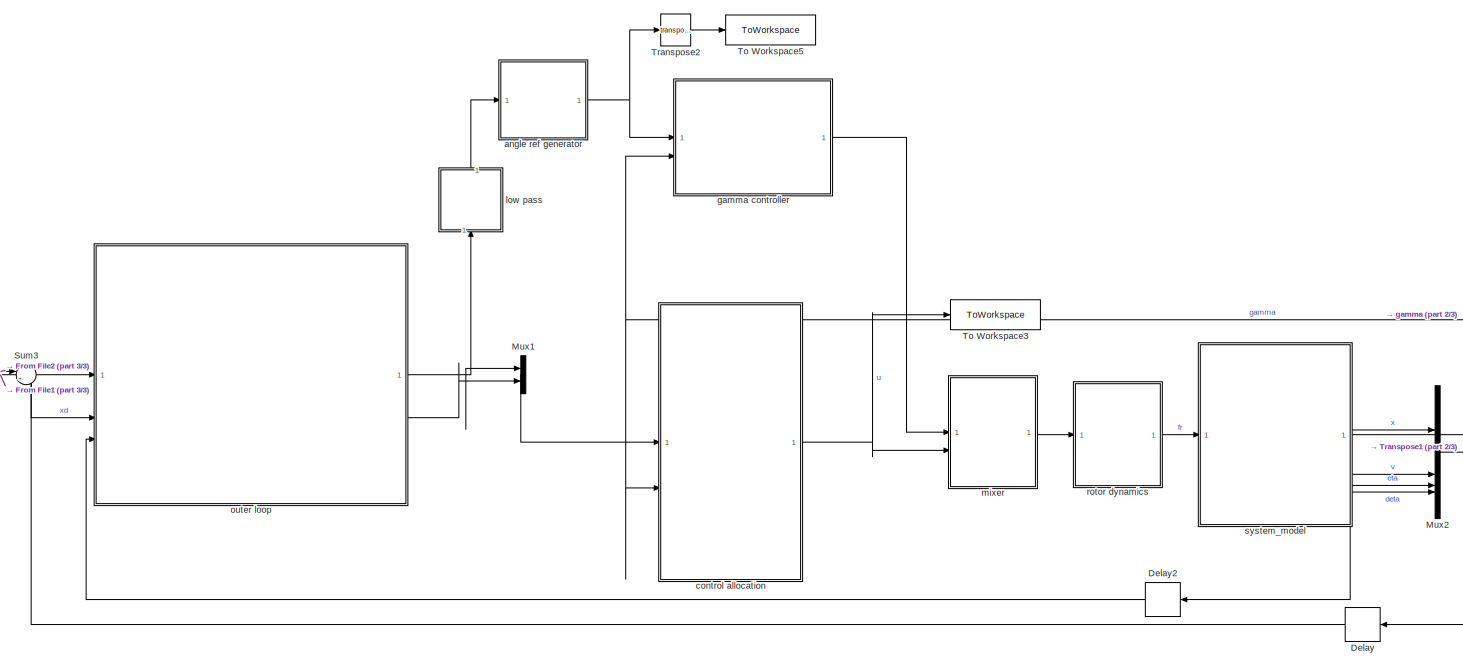
[diagram: root canvas - part 1/3, most of the canvas]
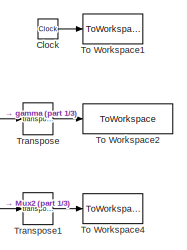
[diagram: root canvas - part 2/3, middle right region]
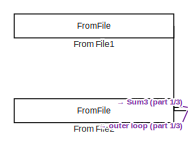
[diagram: root canvas - part 3/3, middle left region]
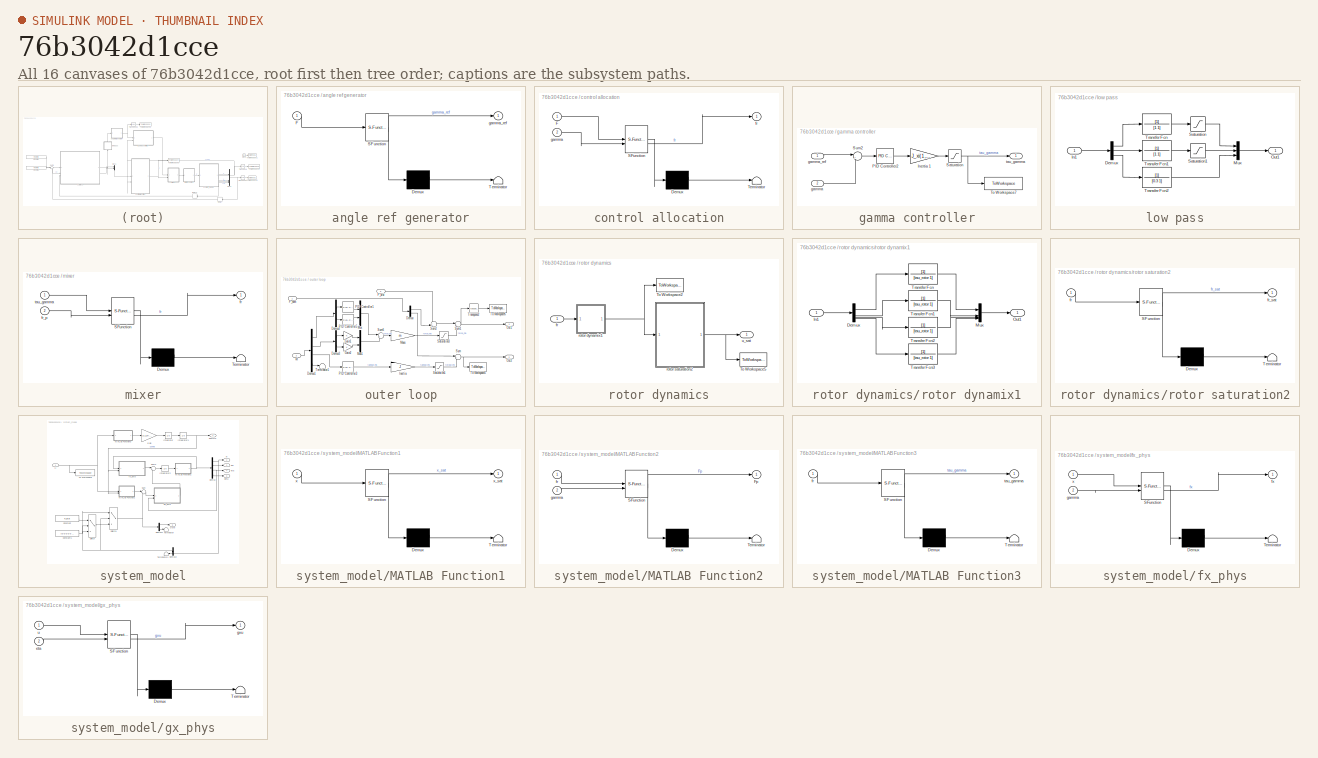
[diagram: thumbnail index - all 16 canvases of the model, root first then tree order]
MODEL slx_76b3042d1cce
KIND model
CONFIG AbsTol = auto
CONFIG EnableMultiTasking = off
CONFIG FixedStep = 0.01
CONFIG MaxStep = auto
CONFIG MinStep = auto
CONFIG RelTol = 1e-3
CONFIG SampleTimeConstraint = Unconstrained
CONFIG SolverName = FixedStepAuto
CONFIG StartTime = 0.0
CONFIG StopTime = end_time
BLOCK [Clock] Clock
BLOCK [Delay] Delay
  DelayLength = 1
  InitialCondition = x0
  InputPortMap = u0
BLOCK [Delay] Delay2
  DelayLength = 1
  InitialCondition = zeros(3,1)
  InputPortMap = u0
BLOCK [FromFile] From File1
  ExtrapolationAfterLastDataPoint = Hold last value
  FileName = data/Fp_nom.mat
  SampleTime = 0
BLOCK [FromFile] From File2
  ExtrapolationAfterLastDataPoint = Hold last value
  FileName = data/x_nom.mat
  SampleTime = 0
BLOCK [Mux] Mux1
  DisplayOption = bar
  Inputs = 2
BLOCK [Mux] Mux2
  DisplayOption = bar
BLOCK [Sum] Sum3
  Inputs = |+-
BLOCK [ToWorkspace] To Workspace1
  FixptAsFi = on
  MaxDataPoints = inf
  SampleTime = -1
  VariableName = time
BLOCK [ToWorkspace] To Workspace2
  FixptAsFi = on
  MaxDataPoints = inf
  SampleTime = -1
  Save2DSignal = 2-D array (concatenate along first dimension)
  VariableName = gamma_
BLOCK [ToWorkspace] To Workspace3
  FixptAsFi = on
  MaxDataPoints = inf
  SampleTime = -1
  VariableName = u
BLOCK [ToWorkspace] To Workspace4
  FixptAsFi = on
  MaxDataPoints = inf
  SampleTime = -1
  Save2DSignal = 2-D array (concatenate along first dimension)
  VariableName = x
BLOCK [ToWorkspace] To Workspace5
  FixptAsFi = on
  MaxDataPoints = inf
  SampleTime = -1
  Save2DSignal = 2-D array (concatenate along first dimension)
  VariableName = gamma_ref
BLOCK [Math] Transpose
  Operator = transpose
BLOCK [Math] Transpose1
  Operator = transpose
BLOCK [Math] Transpose2
  Operator = transpose
BLOCK [SubSystem] angle ref generator
  ErrorFcn = Stateflow.Translate.translate
  PermitHierarchicalResolution = ExplicitOnly
  SFBlockType = MATLAB Function
  TreatAsAtomicUnit = on
BLOCK [Demux] angle ref generator/ Demux 
  Outputs = 1
BLOCK [S-Function] angle ref generator/ SFunction 
  EnableBusSupport = on
  FunctionName = sf_sfun
  Parameters = AX_all,AY_all,opt_angle_table_mat
  PortCounts = [1 2]
  SFcnIsStateOwnerBlock = off
  SFunctionDeploymentMode = off
  Tag = Stateflow S-Function 3
BLOCK [Terminator] angle ref generator/ Terminator 
BLOCK [Inport] angle ref generator/F
BLOCK [Outport] angle ref generator/gamma_ref
BLOCK [SubSystem] control allocation
  ErrorFcn = Stateflow.Translate.translate
  PermitHierarchicalResolution = ExplicitOnly
  SFBlockType = MATLAB Function
  TreatAsAtomicUnit = on
BLOCK [Demux] control allocation/ Demux 
  Outputs = 1
BLOCK [S-Function] control allocation/ SFunction 
  EnableBusSupport = on
  FunctionName = sf_sfun
  Parameters = M_gamma,f_max
  PortCounts = [2 2]
  SFcnIsStateOwnerBlock = off
  SFunctionDeploymentMode = off
  Tag = Stateflow S-Function 4
BLOCK [Terminator] control allocation/ Terminator 
BLOCK [Inport] control allocation/F
BLOCK [Outport] control allocation/fr
  VectorParamsAs1DForOutWhenUnconnected = off
BLOCK [Inport] control allocation/gamma
  Port = 2
BLOCK [SubSystem] gamma controller
BLOCK [Gain] gamma controller/Inertia 1
  Gain = J_xi(1,1)
BLOCK [Reference] gamma controller/PID Controller2  REF=slpidlib/PID Controller
  SourceBlock = slpidlib/PID Controller
  SourceType = PID 1dof
BLOCK [Saturate] gamma controller/Saturation
  LowerLimit = -0.03
  UpperLimit = 0.03
BLOCK [Sum] gamma controller/Sum2
  Inputs = |+-
BLOCK [ToWorkspace] gamma controller/To Workspace7
  FixptAsFi = on
  MaxDataPoints = inf
  SampleTime = -1
  SaveFormat = Timeseries
  VariableName = tau_gamma
BLOCK [Inport] gamma controller/gamma
  Port = 2
BLOCK [Inport] gamma controller/gamma_ref
BLOCK [Outport] gamma controller/tau_gamma
BLOCK [SubSystem] low pass
  NameLocation = right
BLOCK [Demux] low pass/Demux
  Outputs = 3
BLOCK [Inport] low pass/In1
BLOCK [Mux] low pass/Mux
  DisplayOption = bar
  Inputs = 3
BLOCK [Outport] low pass/Out1
BLOCK [Saturate] low pass/Saturation
  LowerLimit = -1
  UpperLimit = 1
BLOCK [Saturate] low pass/Saturation1
  LowerLimit = -1
  UpperLimit = 1
BLOCK [TransferFcn] low pass/Transfer Fcn
  Denominator = [1 1]
BLOCK [TransferFcn] low pass/Transfer Fcn1
  Denominator = [1 1]
BLOCK [TransferFcn] low pass/Transfer Fcn2
  Denominator = [0.3 1]
BLOCK [SubSystem] mixer
  ErrorFcn = Stateflow.Translate.translate
  PermitHierarchicalResolution = ExplicitOnly
  SFBlockType = MATLAB Function
  TreatAsAtomicUnit = on
BLOCK [Demux] mixer/ Demux 
  Outputs = 1
BLOCK [S-Function] mixer/ SFunction 
  EnableBusSupport = on
  FunctionName = sf_sfun
  Parameters = M_gamma
  PortCounts = [2 2]
  SFcnIsStateOwnerBlock = off
  SFunctionDeploymentMode = off
  Tag = Stateflow S-Function 15
BLOCK [Terminator] mixer/ Terminator 
BLOCK [Outport] mixer/fr
BLOCK [Inport] mixer/fr_p
  Port = 2
BLOCK [Inport] mixer/tau_gamma
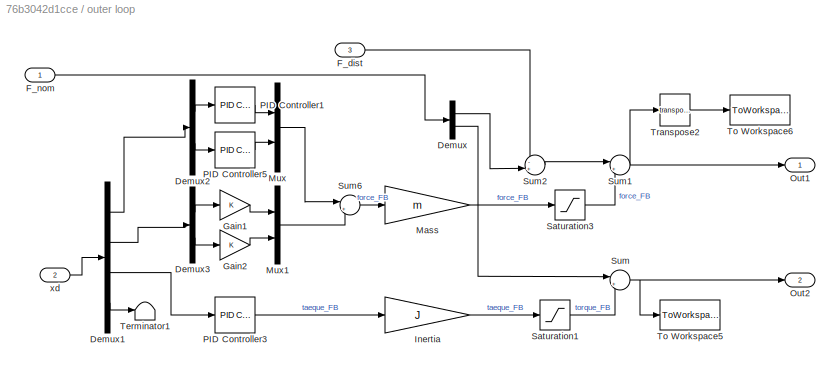
BLOCK [SubSystem] outer loop
BLOCK [Demux] outer loop/Demux
  Outputs = 2
BLOCK [Demux] outer loop/Demux1
  Outputs = [3 3 3 3]
BLOCK [Demux] outer loop/Demux2
  Outputs = [2 1]
BLOCK [Demux] outer loop/Demux3
  Outputs = [2 1]
BLOCK [Inport] outer loop/F_dist
  Port = 3
BLOCK [Inport] outer loop/F_nom
BLOCK [Gain] outer loop/Gain1
BLOCK [Gain] outer loop/Gain2
BLOCK [Gain] outer loop/Inertia 
  Gain = J
  Multiplication = Matrix(K*u) (u vector)
BLOCK [Gain] outer loop/Mass
  Gain = m
BLOCK [Mux] outer loop/Mux
  DisplayOption = bar
  Inputs = 2
BLOCK [Mux] outer loop/Mux1
  DisplayOption = bar
  Inputs = 2
BLOCK [Outport] outer loop/Out1
BLOCK [Outport] outer loop/Out2
  Port = 2
BLOCK [Reference] outer loop/PID Controller1  REF=slpidlib/PID Controller
  SourceBlock = slpidlib/PID Controller
  SourceType = PID 1dof
BLOCK [Reference] outer loop/PID Controller3  REF=slpidlib/PID Controller
  SourceBlock = slpidlib/PID Controller
  SourceType = PID 1dof
BLOCK [Reference] outer loop/PID Controller5  REF=slpidlib/PID Controller
  SourceBlock = slpidlib/PID Controller
  SourceType = PID 1dof
BLOCK [Saturate] outer loop/Saturation1
  LowerLimit = -0.1
  UpperLimit = 0.1
BLOCK [Saturate] outer loop/Saturation3
  LowerLimit = -1
  UpperLimit = 1
BLOCK [Sum] outer loop/Sum
  Inputs = |++
BLOCK [Sum] outer loop/Sum1
  Inputs = |++
BLOCK [Sum] outer loop/Sum2
  Inputs = -+|
BLOCK [Sum] outer loop/Sum6
  Inputs = |++
BLOCK [Terminator] outer loop/Terminator1
BLOCK [ToWorkspace] outer loop/To Workspace5
  FixptAsFi = on
  MaxDataPoints = inf
  SampleTime = -1
  VariableName = moment_ref
BLOCK [ToWorkspace] outer loop/To Workspace6
  FixptAsFi = on
  MaxDataPoints = inf
  SampleTime = -1
  Save2DSignal = 2-D array (concatenate along first dimension)
  VariableName = thrust_ref
BLOCK [Math] outer loop/Transpose2
  Operator = transpose
BLOCK [Inport] outer loop/xd
  Port = 2
BLOCK [SubSystem] rotor dynamics
BLOCK [ToWorkspace] rotor dynamics/To Workspace2
  FixptAsFi = on
  MaxDataPoints = inf
  SampleTime = -1
  VariableName = rotor_input
BLOCK [ToWorkspace] rotor dynamics/To Workspace5
  FixptAsFi = on
  MaxDataPoints = inf
  SampleTime = -1
  VariableName = rotor_sat_input
BLOCK [Inport] rotor dynamics/fr
BLOCK [SubSystem] rotor dynamics/rotor dynamix1
  Commented = through
BLOCK [Demux] rotor dynamics/rotor dynamix1/Demux
BLOCK [Inport] rotor dynamics/rotor dynamix1/In1
BLOCK [Mux] rotor dynamics/rotor dynamix1/Mux
  DisplayOption = bar
BLOCK [Outport] rotor dynamics/rotor dynamix1/Out1
BLOCK [TransferFcn] rotor dynamics/rotor dynamix1/Transfer Fcn
  Denominator = [tau_rotor 1]
BLOCK [TransferFcn] rotor dynamics/rotor dynamix1/Transfer Fcn1
  Denominator = [tau_rotor 1]
BLOCK [TransferFcn] rotor dynamics/rotor dynamix1/Transfer Fcn2
  Denominator = [tau_rotor 1]
BLOCK [TransferFcn] rotor dynamics/rotor dynamix1/Transfer Fcn3
  Denominator = [tau_rotor 1]
BLOCK [SubSystem] rotor dynamics/rotor saturation2
  ErrorFcn = Stateflow.Translate.translate
  PermitHierarchicalResolution = ExplicitOnly
  SFBlockType = MATLAB Function
  TreatAsAtomicUnit = on
BLOCK [Demux] rotor dynamics/rotor saturation2/ Demux 
  Outputs = 1
BLOCK [S-Function] rotor dynamics/rotor saturation2/ SFunction 
  EnableBusSupport = on
  FunctionName = sf_sfun
  Parameters = f_max
  PortCounts = [1 2]
  SFcnIsStateOwnerBlock = off
  SFunctionDeploymentMode = off
  Tag = Stateflow S-Function 13
BLOCK [Terminator] rotor dynamics/rotor saturation2/ Terminator 
BLOCK [Inport] rotor dynamics/rotor saturation2/fr
BLOCK [Outport] rotor dynamics/rotor saturation2/fr_sat
  VectorParamsAs1DForOutWhenUnconnected = off
BLOCK [Outport] rotor dynamics/u_sat
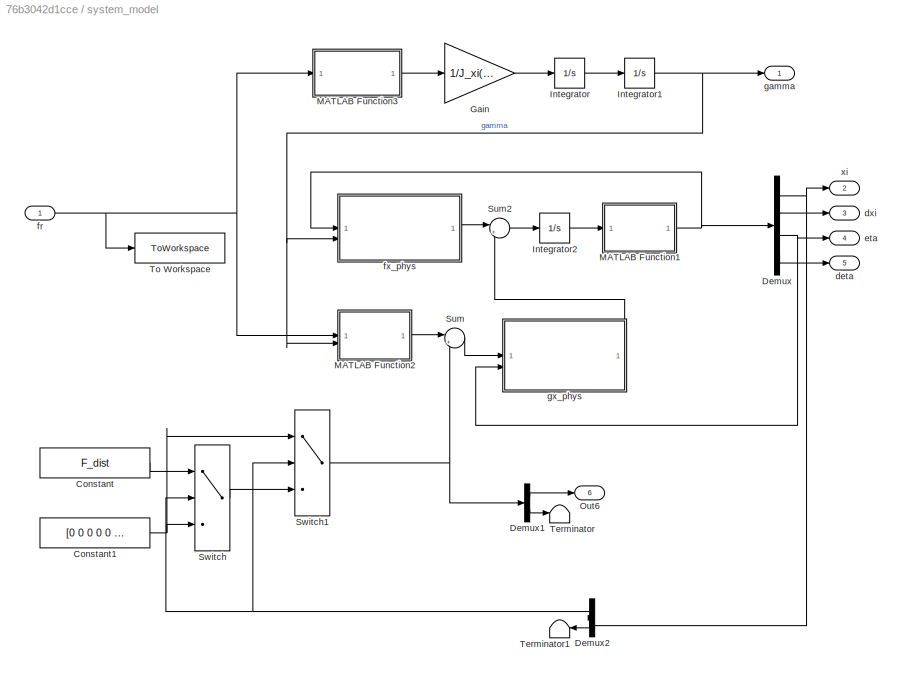
BLOCK [SubSystem] system_model
  PortSchema = {"entries":[{"content":{"sides":[{"content":{"connectorIds":["In1"]},"type":"ConnectorPlacement.EquallySpacedRectSide","uuid":"254c1886-4b3f-4fd7-a815-da90215f9171"},{"content":{"connectorIds":["Out1","Out2","Out3","Out4","Out5"],"side":"RIGHT"},"type":"ConnectorPlacement.EquallySpacedRectSide","uuid":"0b427131-5008-4b05-bf64-69ca1b176e39"},{"content":{"side":"TOP"},"type":"ConnectorPlacement.Equa...<+400ch>
BLOCK [Constant] system_model/Constant
  Value = F_dist
BLOCK [Constant] system_model/Constant1
  Value = [0 0 0 0 0 0]
BLOCK [Demux] system_model/Demux
  Outputs = [3 3 3 3]
BLOCK [Demux] system_model/Demux1
  Outputs = [3 3]
BLOCK [Demux] system_model/Demux2
  Outputs = [1 2]
BLOCK [Gain] system_model/Gain
  Gain = 1/J_xi(1,1)
BLOCK [Integrator] system_model/Integrator
  InitialCondition = zeros(4,1)
BLOCK [Integrator] system_model/Integrator1
  InitialCondition = gamma0
BLOCK [Integrator] system_model/Integrator2
  InitialCondition = x0
BLOCK [SubSystem] system_model/MATLAB Function1
  ErrorFcn = Stateflow.Translate.translate
  PermitHierarchicalResolution = ExplicitOnly
  SFBlockType = MATLAB Function
  TreatAsAtomicUnit = on
BLOCK [Demux] system_model/MATLAB Function1/ Demux 
  Outputs = 1
BLOCK [S-Function] system_model/MATLAB Function1/ SFunction 
  EnableBusSupport = on
  FunctionName = sf_sfun
  PortCounts = [1 2]
  SFcnIsStateOwnerBlock = off
  SFunctionDeploymentMode = off
  Tag = Stateflow S-Function 11
BLOCK [Terminator] system_model/MATLAB Function1/ Terminator 
BLOCK [Inport] system_model/MATLAB Function1/x
BLOCK [Outport] system_model/MATLAB Function1/x_sat
BLOCK [SubSystem] system_model/MATLAB Function2
  ErrorFcn = Stateflow.Translate.translate
  PermitHierarchicalResolution = ExplicitOnly
  SFBlockType = MATLAB Function
  TreatAsAtomicUnit = on
BLOCK [Demux] system_model/MATLAB Function2/ Demux 
  Outputs = 1
BLOCK [S-Function] system_model/MATLAB Function2/ SFunction 
  EnableBusSupport = on
  FunctionName = sf_sfun
  PortCounts = [2 2]
  SFcnIsStateOwnerBlock = off
  SFunctionDeploymentMode = off
  Tag = Stateflow S-Function 2
BLOCK [Terminator] system_model/MATLAB Function2/ Terminator 
BLOCK [Outport] system_model/MATLAB Function2/Fp
BLOCK [Inport] system_model/MATLAB Function2/fr
BLOCK [Inport] system_model/MATLAB Function2/gamma
  Port = 2
BLOCK [SubSystem] system_model/MATLAB Function3
  ErrorFcn = Stateflow.Translate.translate
  PermitHierarchicalResolution = ExplicitOnly
  SFBlockType = MATLAB Function
  TreatAsAtomicUnit = on
BLOCK [Demux] system_model/MATLAB Function3/ Demux 
  Outputs = 1
BLOCK [S-Function] system_model/MATLAB Function3/ SFunction 
  EnableBusSupport = on
  FunctionName = sf_sfun
  Parameters = M_gamma
  PortCounts = [1 2]
  SFcnIsStateOwnerBlock = off
  SFunctionDeploymentMode = off
  Tag = Stateflow S-Function 7
BLOCK [Terminator] system_model/MATLAB Function3/ Terminator 
BLOCK [Inport] system_model/MATLAB Function3/fr
BLOCK [Outport] system_model/MATLAB Function3/tau_gamma
BLOCK [Outport] system_model/Out6
  Port = 6
BLOCK [Sum] system_model/Sum
  Inputs = |++
BLOCK [Sum] system_model/Sum2
  Inputs = |++
BLOCK [Switch] system_model/Switch
  Criteria = u2 > Threshold
  InputSameDT = off
  SaturateOnIntegerOverflow = off
  Threshold = 1
BLOCK [Switch] system_model/Switch1
  Criteria = u2 > Threshold
  InputSameDT = off
  SaturateOnIntegerOverflow = off
  Threshold = 4
BLOCK [Terminator] system_model/Terminator
BLOCK [Terminator] system_model/Terminator1
BLOCK [ToWorkspace] system_model/To Workspace
  FixptAsFi = on
  MaxDataPoints = inf
  SampleTime = -1
  VariableName = fr
BLOCK [Outport] system_model/deta
  Port = 5
  VectorParamsAs1DForOutWhenUnconnected = off
BLOCK [Outport] system_model/dxi
  Port = 3
  VectorParamsAs1DForOutWhenUnconnected = off
BLOCK [Outport] system_model/eta
  Port = 4
  VectorParamsAs1DForOutWhenUnconnected = off
BLOCK [Inport] system_model/fr
BLOCK [SubSystem] system_model/fx_phys
  ErrorFcn = Stateflow.Translate.translate
  PermitHierarchicalResolution = ExplicitOnly
  SFBlockType = MATLAB Function
  TreatAsAtomicUnit = on
BLOCK [Demux] system_model/fx_phys/ Demux 
  Outputs = 1
BLOCK [S-Function] system_model/fx_phys/ SFunction 
  EnableBusSupport = on
  FunctionName = sf_sfun
  PortCounts = [2 2]
  SFcnIsStateOwnerBlock = off
  SFunctionDeploymentMode = off
  Tag = Stateflow S-Function 1
BLOCK [Terminator] system_model/fx_phys/ Terminator 
BLOCK [Outport] system_model/fx_phys/fx
  VectorParamsAs1DForOutWhenUnconnected = off
BLOCK [Inport] system_model/fx_phys/gamma
  Port = 2
BLOCK [Inport] system_model/fx_phys/x
BLOCK [Outport] system_model/gamma
  VectorParamsAs1DForOutWhenUnconnected = off
BLOCK [SubSystem] system_model/gx_phys
  ErrorFcn = Stateflow.Translate.translate
  PermitHierarchicalResolution = ExplicitOnly
  SFBlockType = MATLAB Function
  TreatAsAtomicUnit = on
BLOCK [Demux] system_model/gx_phys/ Demux 
  Outputs = 1
BLOCK [S-Function] system_model/gx_phys/ SFunction 
  EnableBusSupport = on
  FunctionName = sf_sfun
  PortCounts = [2 2]
  SFcnIsStateOwnerBlock = off
  SFunctionDeploymentMode = off
  Tag = Stateflow S-Function 8
BLOCK [Terminator] system_model/gx_phys/ Terminator 
BLOCK [Inport] system_model/gx_phys/eta
  Port = 2
BLOCK [Outport] system_model/gx_phys/gxu
  VectorParamsAs1DForOutWhenUnconnected = off
BLOCK [Inport] system_model/gx_phys/u
BLOCK [Outport] system_model/xi
  Port = 2
  VectorParamsAs1DForOutWhenUnconnected = off
LINE Clock:1 -> To Workspace1:1
LINE Delay2:1 -> outer loop:3
LINE Delay:1 -> Sum3:2
LINE From File1:1 -> outer loop:1
LINE From File2:1 -> Sum3:1
LINE Mux1:1 -> control allocation:1
NET Mux2:1 -> Delay:1, Transpose1:1
LINE Sum3:1 -> outer loop:2
LINE Transpose1:1 -> To Workspace4:1
LINE Transpose2:1 -> To Workspace5:1
LINE Transpose:1 -> To Workspace2:1
NET angle ref generator:1 -> Transpose2:1, gamma controller:1
NET control allocation:1 -> To Workspace3:1, mixer:2
LINE gamma controller/Inertia 1:1 -> gamma controller/Saturation:1
LINE gamma controller/PID Controller2:1 -> gamma controller/Inertia 1:1
NET gamma controller/Saturation:1 -> gamma controller/To Workspace7:1, gamma controller/tau_gamma:1
LINE gamma controller/Sum2:1 -> gamma controller/PID Controller2:1
LINE gamma controller/gamma:1 -> gamma controller/Sum2:2
LINE gamma controller/gamma_ref:1 -> gamma controller/Sum2:1
LINE gamma controller:1 -> mixer:1
LINE low pass/Demux:1 -> low pass/Transfer Fcn:1
LINE low pass/Demux:2 -> low pass/Transfer Fcn1:1
LINE low pass/Demux:3 -> low pass/Transfer Fcn2:1
LINE low pass/In1:1 -> low pass/Demux:1
LINE low pass/Mux:1 -> low pass/Out1:1
LINE low pass/Saturation1:1 -> low pass/Mux:2
LINE low pass/Saturation:1 -> low pass/Mux:1
LINE low pass/Transfer Fcn1:1 -> low pass/Saturation1:1
LINE low pass/Transfer Fcn2:1 -> low pass/Mux:3
LINE low pass/Transfer Fcn:1 -> low pass/Saturation:1
LINE low pass:1 -> angle ref generator:1
LINE mixer:1 -> rotor dynamics:1
LINE outer loop/Demux1:1 -> outer loop/Demux2:1
LINE outer loop/Demux1:2 -> outer loop/Demux3:1
LINE outer loop/Demux1:3 -> outer loop/PID Controller3:1
LINE outer loop/Demux1:4 -> outer loop/Terminator1:1
LINE outer loop/Demux2:1 -> outer loop/PID Controller1:1
LINE outer loop/Demux2:2 -> outer loop/PID Controller5:1
LINE outer loop/Demux3:1 -> outer loop/Gain1:1
LINE outer loop/Demux3:2 -> outer loop/Gain2:1
LINE outer loop/Demux:1 -> outer loop/Sum2:2
LINE outer loop/Demux:2 -> outer loop/Sum:1
LINE outer loop/F_dist:1 -> outer loop/Sum2:1
LINE outer loop/F_nom:1 -> outer loop/Demux:1
LINE outer loop/Gain1:1 -> outer loop/Mux1:1
LINE outer loop/Gain2:1 -> outer loop/Mux1:2
LINE outer loop/Inertia :1 -> outer loop/Saturation1:1
LINE outer loop/Mass:1 -> outer loop/Saturation3:1
LINE outer loop/Mux1:1 -> outer loop/Sum6:2
LINE outer loop/Mux:1 -> outer loop/Sum6:1
LINE outer loop/PID Controller1:1 -> outer loop/Mux:1
LINE outer loop/PID Controller3:1 -> outer loop/Inertia :1
LINE outer loop/PID Controller5:1 -> outer loop/Mux:2
LINE outer loop/Saturation1:1 -> outer loop/Sum:2
LINE outer loop/Saturation3:1 -> outer loop/Sum1:2
NET outer loop/Sum1:1 -> outer loop/Out1:1, outer loop/Transpose2:1
LINE outer loop/Sum2:1 -> outer loop/Sum1:1
LINE outer loop/Sum6:1 -> outer loop/Mass:1
NET outer loop/Sum:1 -> outer loop/Out2:1, outer loop/To Workspace5:1
LINE outer loop/Transpose2:1 -> outer loop/To Workspace6:1
LINE outer loop/xd:1 -> outer loop/Demux1:1
NET outer loop:1 -> Mux1:1, low pass:1
LINE outer loop:2 -> Mux1:2
LINE rotor dynamics/fr:1 -> rotor dynamics/rotor dynamix1:1
LINE rotor dynamics/rotor dynamix1/Demux:1 -> rotor dynamics/rotor dynamix1/Transfer Fcn:1
LINE rotor dynamics/rotor dynamix1/Demux:2 -> rotor dynamics/rotor dynamix1/Transfer Fcn1:1
LINE rotor dynamics/rotor dynamix1/Demux:3 -> rotor dynamics/rotor dynamix1/Transfer Fcn2:1
LINE rotor dynamics/rotor dynamix1/Demux:4 -> rotor dynamics/rotor dynamix1/Transfer Fcn3:1
LINE rotor dynamics/rotor dynamix1/In1:1 -> rotor dynamics/rotor dynamix1/Demux:1
LINE rotor dynamics/rotor dynamix1/Mux:1 -> rotor dynamics/rotor dynamix1/Out1:1
LINE rotor dynamics/rotor dynamix1/Transfer Fcn1:1 -> rotor dynamics/rotor dynamix1/Mux:2
LINE rotor dynamics/rotor dynamix1/Transfer Fcn2:1 -> rotor dynamics/rotor dynamix1/Mux:3
LINE rotor dynamics/rotor dynamix1/Transfer Fcn3:1 -> rotor dynamics/rotor dynamix1/Mux:4
LINE rotor dynamics/rotor dynamix1/Transfer Fcn:1 -> rotor dynamics/rotor dynamix1/Mux:1
NET rotor dynamics/rotor dynamix1:1 -> rotor dynamics/To Workspace2:1, rotor dynamics/rotor saturation2:1
NET rotor dynamics/rotor saturation2:1 -> rotor dynamics/To Workspace5:1, rotor dynamics/u_sat:1
LINE rotor dynamics:1 -> system_model:1
NET system_model/Constant1:1 -> system_model/Switch1:1, system_model/Switch:3
LINE system_model/Constant:1 -> system_model/Switch:1
LINE system_model/Demux1:1 -> system_model/Out6:1
LINE system_model/Demux1:2 -> system_model/Terminator:1
NET system_model/Demux2:1 -> system_model/Switch1:2, system_model/Switch:2
LINE system_model/Demux2:2 -> system_model/Terminator1:1
NET system_model/Demux:1 -> system_model/Demux2:1, system_model/xi:1
LINE system_model/Demux:2 -> system_model/dxi:1
NET system_model/Demux:3 -> system_model/eta:1, system_model/gx_phys:2
LINE system_model/Demux:4 -> system_model/deta:1
LINE system_model/Gain:1 -> system_model/Integrator:1
NET system_model/Integrator1:1 -> system_model/MATLAB Function2:2, system_model/fx_phys:2, system_model/gamma:1
LINE system_model/Integrator2:1 -> system_model/MATLAB Function1:1
LINE system_model/Integrator:1 -> system_model/Integrator1:1
NET system_model/MATLAB Function1:1 -> system_model/Demux:1, system_model/fx_phys:1
LINE system_model/MATLAB Function2:1 -> system_model/Sum:1
LINE system_model/MATLAB Function3:1 -> system_model/Gain:1
LINE system_model/Sum2:1 -> system_model/Integrator2:1
LINE system_model/Sum:1 -> system_model/gx_phys:1
NET system_model/Switch1:1 -> system_model/Demux1:1, system_model/Sum:2
LINE system_model/Switch:1 -> system_model/Switch1:3
NET system_model/fr:1 -> system_model/MATLAB Function2:1, system_model/MATLAB Function3:1, system_model/To Workspace:1
LINE system_model/fx_phys:1 -> system_model/Sum2:1
LINE system_model/gx_phys:1 -> system_model/Sum2:2
NET system_model:1 -> Transpose:1, control allocation:2, gamma controller:2
LINE system_model:2 -> Mux2:1
LINE system_model:3 -> Mux2:2
LINE system_model:4 -> Mux2:3
LINE system_model:5 -> Mux2:4
LINE system_model:6 -> Delay2:1
note: NET lines group one-source signal fan-out (src -> all destinations, sorted); 1:1 wires keep LINE
CHART mixer states=1 transitions=1
  STATE_LABEL 'eML_blk_kernel()'
  STATE_LABEL "SCRIPT:\nfunction fr = mixer(tau_gamma,fr_p, M_gamma)\n    \n    fr_gamma = M_gamma \\ tau_gamma;\n\n    fr = fr_p' + fr_gamma;\n    "
CHART system_model/fx_phys states=1 transitions=1
  STATE_LABEL 'eML_blk_kernel()'
  STATE_LABEL 'SCRIPT:\nfunction fx=fx_phys(x,gamma)\n\n%this function generated in "variable_system.m"\nfx=fx_fun(x,gamma);'
CHART system_model/MATLAB Function2 states=1 transitions=1
  STATE_LABEL 'eML_blk_kernel()'
  STATE_LABEL "SCRIPT:\nfunction Fp = fcn(fr, gamma)\n\nFp = M_ftau_fun(gamma')*fr;"
CHART angle ref generator states=1 transitions=1
  STATE_LABEL 'eML_blk_kernel()'
  STATE_LABEL "SCRIPT:\nfunction gamma_ref = generate_gamma_ref(F, opt_angle_table_mat, AX_all, AY_all)\n\ngamma_ref = zeros(4,1);\nfor i=1:4\n    opt_angle_tmp = reshape(opt_angle_table_mat(i,:,:),size(AX_all));\n    gamma_ref(i) = interp2(AX_all, AY_all, opt_angle_tmp', F(1), F(2),'cubic');\nend\n"
CHART control allocation states=1 transitions=1
  STATE_LABEL 'eML_blk_kernel()'
  STATE_LABEL "SCRIPT:\nfunction fr= control_allocation(F, gamma, f_max, M_gamma)\n\ncoder.extrinsic('lsqminnorm');\ncoder.extrinsic('linprog');\n\nN = length(gamma);\n\n% f_mid = norm(F(1:3))/(4*N);\nf_mid = 0;\n\nf = [zeros(1,4*N), 1, -1];\nA = [eye(4*N), -ones(4*N,1), zeros(4*N,1);\n     -eye(4*N), zeros(4*N,1), ones(4*N,1);\n     zeros(1,4*N), 0, -1];\nb = [f_mid*ones(4*N,1); -f_mid*ones(4*N,1); 0];\n\nM_ftau = M_ftau_fun(ga...<+1002ch>"
CHART system_model/MATLAB Function3 states=1 transitions=1
  STATE_LABEL 'eML_blk_kernel()'
  STATE_LABEL 'SCRIPT:\nfunction tau_gamma = fcn(fr, M_gamma)\n\n    tau_gamma = M_gamma * fr;\n'
CHART system_model/gx_phys states=1 transitions=1
  STATE_LABEL 'eML_blk_kernel()'
  STATE_LABEL 'SCRIPT:\nfunction gxu=gx_phys(u,eta)\n%this function generated in "variable_system.m"\n\ngxu=gx_fun(eta)*u;'
CHART system_model/MATLAB Function1 states=1 transitions=1
  STATE_LABEL 'eML_blk_kernel()'
  STATE_LABEL 'SCRIPT:\nfunction x_sat = z_satulation(x)\n\n    x_sat = x;\n    if x(3) < 0.1\n        x_sat(3)=0.1;\n        % if x(6)<0\n        %     x_sat(6)=0;\n        % end\n    end\n    \nend\n'
CHART rotor dynamics/rotor saturation2 states=1 transitions=1
  STATE_LABEL 'eML_blk_kernel()'
  STATE_LABEL 'SCRIPT:\nfunction fr_sat = input_saturation(fr,f_max)\n\nfr_sat = zeros(size(fr));\n\nfr_sat = max(fr,zeros(size(fr)));\nfr_sat = min(fr_sat,f_max*ones(size(fr)));'
CHART  states=0 transitions=0
CHART  states=0 transitions=0
CHART  states=0 transitions=0
CHART  states=0 transitions=0
CHART  states=0 transitions=0
CHART  states=0 transitions=0
CHART  states=0 transitions=0
CHART  states=0 transitions=0
CHART  states=0 transitions=0
